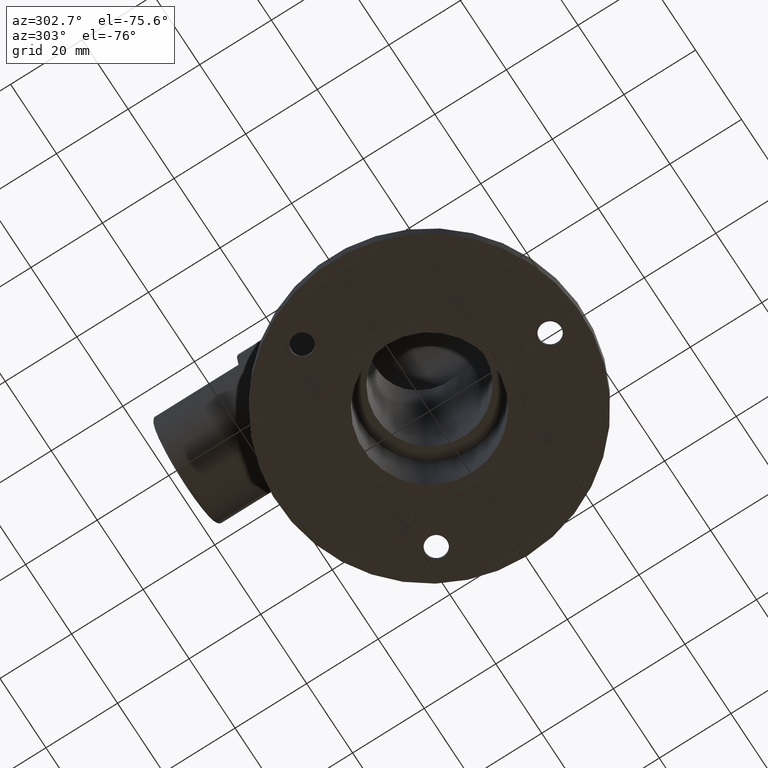
[diagram: clean part render]
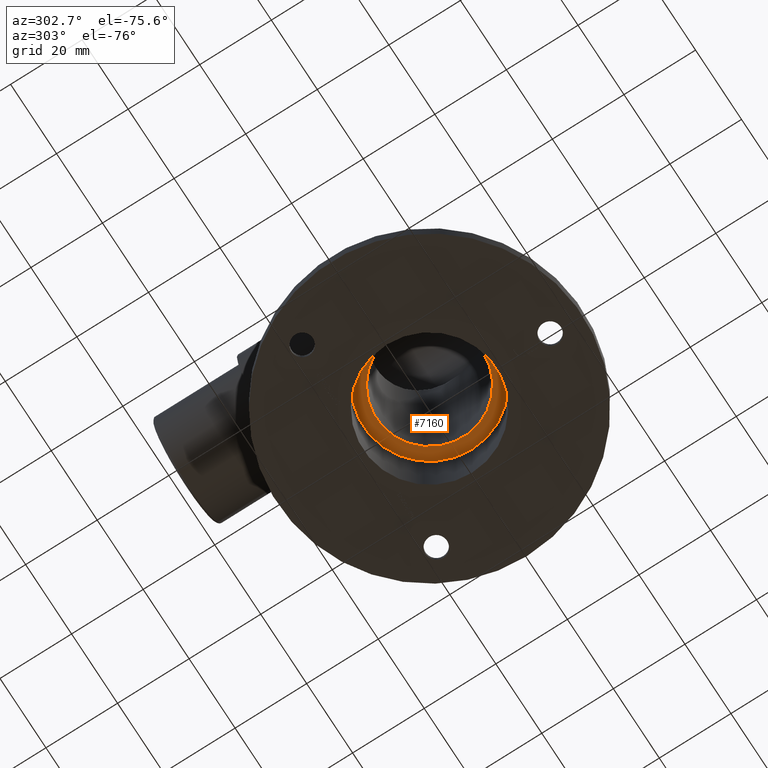
[diagram: same view with one face highlighted and labeled with its STEP entity id]
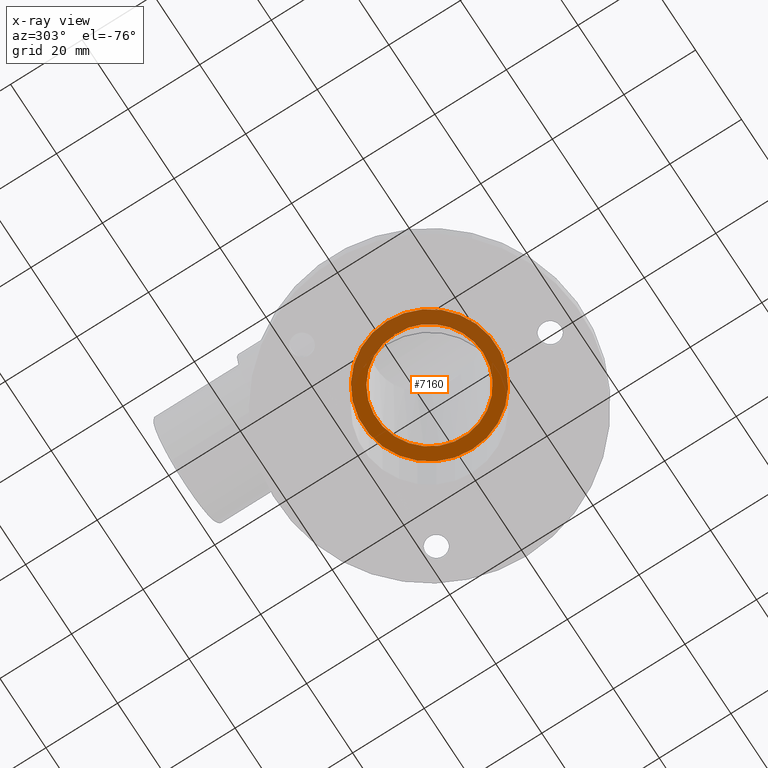
[diagram: x-ray of the same camera — body ghosted, the highlighted face saturated]
A machine part, auxiliary view. The second image highlights one B-rep face of the part: STEP entity #7160.
The next image is the same camera in x-ray: the body ghosted, the highlighted face saturated — about 45% of this face is hidden behind the body in this view.
In plain terms, the highlighted planar face has unit normal (0, 0, 1).
Its self-contained STEP definition (entity closure, byte-faithful):
#1102 = EDGE_LOOP ( 'NONE', ( #7024 ) ) ;
#1408 = VERTEX_POINT ( 'NONE', #12626 ) ;
#2095 = DIRECTION ( 'NONE',  ( 0.000000000000000000, 0.000000000000000000, -1.000000000000000000 ) ) ;
#3110 = DIRECTION ( 'NONE',  ( 0.000000000000000000, 0.000000000000000000, 1.000000000000000000 ) ) ;
#3652 = ORIENTED_EDGE ( 'NONE', *, *, #9936, .F. ) ;
#3864 = DIRECTION ( 'NONE',  ( -1.000000000000000000, 0.000000000000000000, 0.000000000000000000 ) ) ;
#4276 = DIRECTION ( 'NONE',  ( 1.000000000000000000, 0.000000000000000000, 0.000000000000000000 ) ) ;
#5885 = DIRECTION ( 'NONE',  ( 1.000000000000000000, 0.000000000000000000, -0.000000000000000000 ) ) ;
#6022 = CARTESIAN_POINT ( 'NONE',  ( 0.000000000000000000, 0.000000000000000000, 22.00000000000000000 ) ) ;
#6172 = CARTESIAN_POINT ( 'NONE',  ( 0.000000000000000000, 0.000000000000000000, 22.00000000000000000 ) ) ;
#6992 = CARTESIAN_POINT ( 'NONE',  ( 18.50000000000000000, 0.000000000000000000, 22.00000000000000000 ) ) ;
#7024 = ORIENTED_EDGE ( 'NONE', *, *, #14980, .T. ) ;
#7160 = ADVANCED_FACE ( 'NONE', ( #12226, #10527 ), #7266, .F. ) ;
#7266 = PLANE ( 'NONE',  #13530 ) ;
#7398 = AXIS2_PLACEMENT_3D ( 'NONE', #11305, #12720, #4276 ) ;
#9277 = CIRCLE ( 'NONE', #7398, 18.50000000000000000 ) ;
#9936 = EDGE_CURVE ( 'NONE', #1408, #1408, #16723, .T. ) ;
#10277 = EDGE_LOOP ( 'NONE', ( #3652 ) ) ;
#10527 = FACE_OUTER_BOUND ( 'NONE', #1102, .T. ) ;
#10832 = VERTEX_POINT ( 'NONE', #6992 ) ;
#11305 = CARTESIAN_POINT ( 'NONE',  ( 0.000000000000000000, 0.000000000000000000, 22.00000000000000000 ) ) ;
#11713 = AXIS2_PLACEMENT_3D ( 'NONE', #6172, #2095, #3864 ) ;
#12226 = FACE_BOUND ( 'NONE', #10277, .T. ) ;
#12626 = CARTESIAN_POINT ( 'NONE',  ( -14.85000000000000142, 0.000000000000000000, 22.00000000000000000 ) ) ;
#12720 = DIRECTION ( 'NONE',  ( -0.000000000000000000, -0.000000000000000000, -1.000000000000000000 ) ) ;
#13530 = AXIS2_PLACEMENT_3D ( 'NONE', #6022, #3110, #5885 ) ;
#14980 = EDGE_CURVE ( 'NONE', #10832, #10832, #9277, .T. ) ;
#16723 = CIRCLE ( 'NONE', #11713, 14.85000000000000142 ) ;